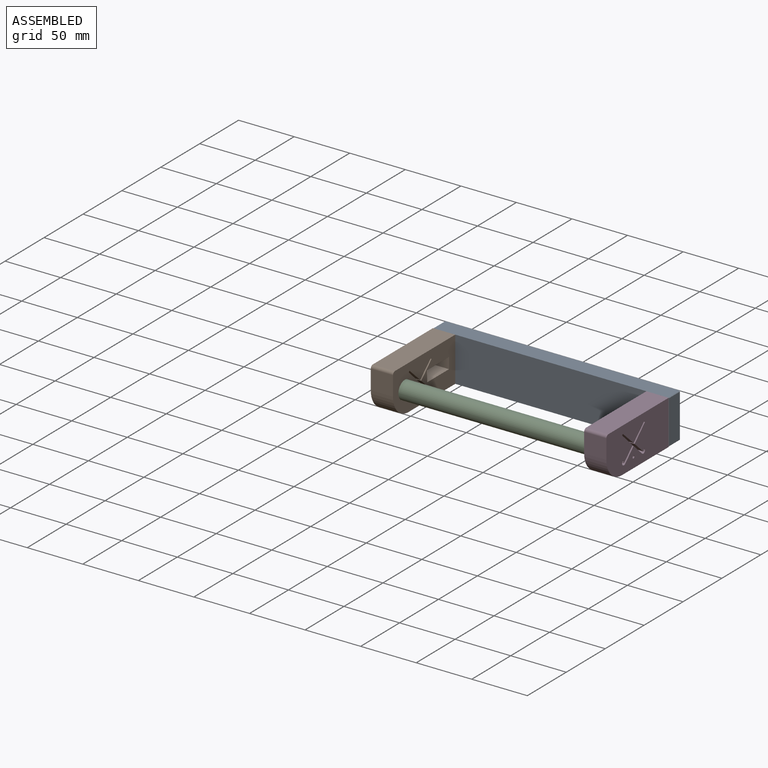
[diagram: assembled view]
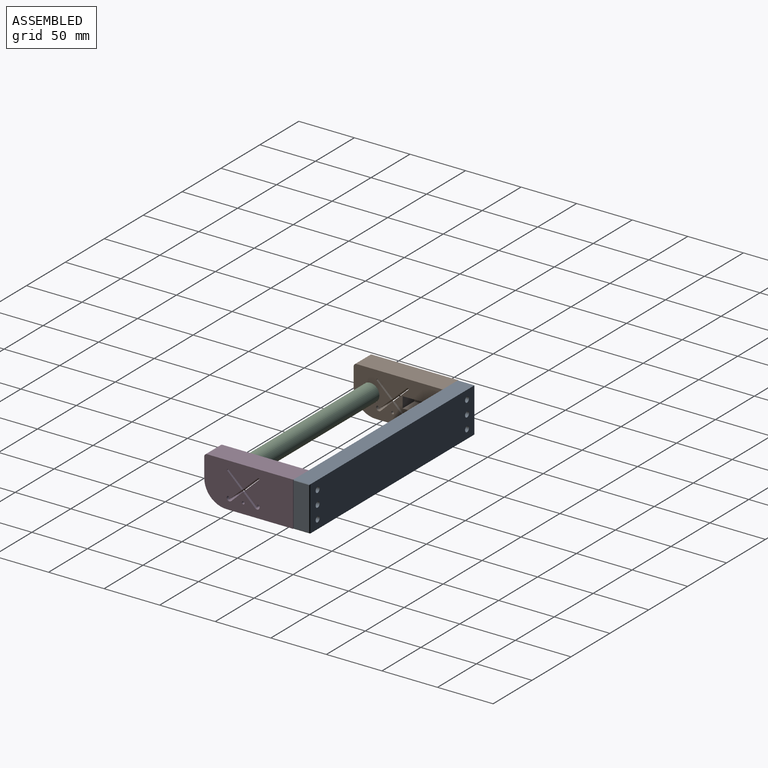
[diagram: assembled view, second angle]
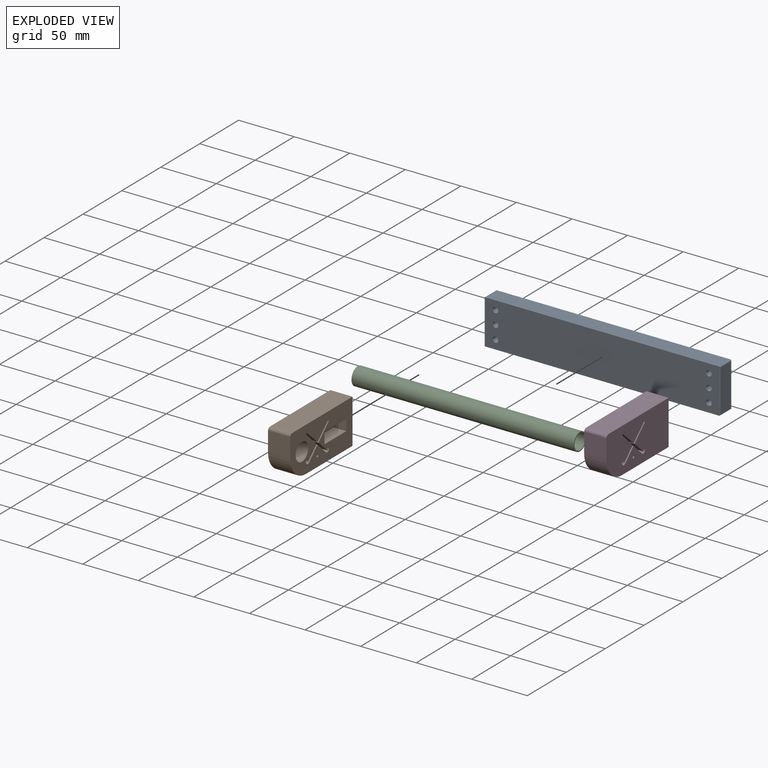
[diagram: exploded view]
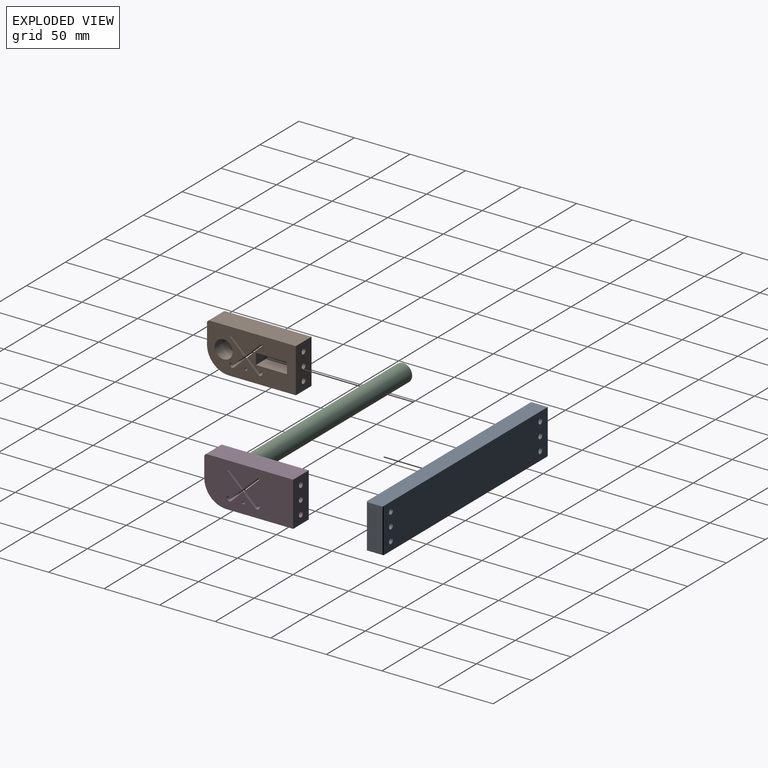
[diagram: exploded view, second angle]
ASSEMBLY  parts=4 mates=7
PART A: 20 faces, bbox 212x15x40 mm
  f0: plane 211x40mm, normal (0,-1,0), area 8322.2mm2, adj f2,f4,f5,f6,f8,f9,f10,f11
  f1: plane 211x40mm, normal (0,1,0), area 8322.2mm2, adj f2,f4,f5,f6,f8,f9,f10,f11
  f2: plane 211x15mm, normal (0,0,1), area 3165mm2, adj f0,f1,f13,f17
  f3: plane 39x14mm, normal (-1,0,0), area 546mm2, adj f12,f13,f14,f15
  f4: plane 211x15mm, normal (0,0,-1), area 3165mm2, adj f0,f1,f14,f18
  f5: cylinder r=2.5mm len=15mm, axis (0,1,0), area 235.6mm2, adj f0,f1
  f6: cylinder r=2.5mm len=15mm, axis (0,1,0), area 235.6mm2, adj f0,f1
  f7: plane 39x14mm, normal (1,0,0), area 546mm2, adj f16,f17,f18,f19
  f8: cylinder r=2.5mm len=15mm, axis (0,-1,0), area 235.6mm2, adj f0,f1
  f9: cylinder r=2.5mm len=15mm, axis (0,-1,0), area 235.6mm2, adj f0,f1
  f10: cylinder r=2.5mm len=15mm, axis (0,-1,0), area 235.6mm2, adj f0,f1
  f11: cylinder r=2.5mm len=15mm, axis (0,-1,0), area 235.6mm2, adj f0,f1
  f12: plane 40x0.5mm, normal (-0.71,-0.71,0), area 27.9mm2, adj f0,f3,f13,f14
  f13: plane 15x0.5mm, normal (-0.71,0,0.71), area 10.3mm2, adj f2,f3,f12,f15
  f14: plane 15x0.5mm, normal (-0.71,0,-0.71), area 10.3mm2, adj f3,f4,f12,f15
  f15: plane 40x0.5mm, normal (-0.71,0.71,0), area 27.9mm2, adj f1,f3,f13,f14
  f16: plane 40x0.5mm, normal (0.71,-0.71,0), area 27.9mm2, adj f0,f7,f17,f18
  f17: plane 15x0.5mm, normal (0.71,0,0.71), area 10.3mm2, adj f2,f7,f16,f19
  f18: plane 15x0.5mm, normal (0.71,0,-0.71), area 10.3mm2, adj f4,f7,f16,f19
  f19: plane 40x0.5mm, normal (0.71,0.71,0), area 27.9mm2, adj f1,f7,f17,f18
PART B: 39 faces, bbox 20x80x40 mm
  f0: plane 80x40mm, normal (1,0,0), area 2489.5mm2, adj f3,f4,f5,f6,f7,f9,f10,f11
  f1: plane 80x40mm, normal (-1,0,0), area 2975.6mm2, adj f3,f4,f5,f6,f14,f21,f22,f23
  f2: cylinder r=2.05mm len=5mm, axis (0,1,0), area 64.4mm2, adj f9,f15
  f3: plane 77.5x20mm, normal (0,0,1), area 1550mm2, adj f0,f1,f6,f38
  f4: plane 60x20mm, normal (0,0,-1), area 1200mm2, adj f0,f1,f6,f14
  f5: plane 20x17.5mm, normal (0,-1,0), area 350mm2, adj f0,f1,f14,f38
  f6: plane 40x20mm, normal (0,1,0), area 741.1mm2, adj f0,f1,f3,f4,f16,f17,f19
  f7: cylinder r=8.1mm len=16.2mm, axis (1,0,0), area 763.4mm2, adj f0,f8
  f8: plane 16.2x16.2mm, normal (1,0,0), area 206.1mm2, adj f7
  f9: plane 15x10mm, normal (0,-1,0), area 136.8mm2, adj f0,f2,f10,f12,f13
  f10: plane 28x15mm, normal (0,0,-1), area 420mm2, adj f0,f9,f11,f13
  f11: plane 15x10mm, normal (0,1,0), area 150mm2, adj f0,f10,f12,f13
  f12: plane 28x15mm, normal (0,0,1), area 420mm2, adj f0,f9,f11,f13
  f13: plane 28x10mm, normal (1,0,0), area 280mm2, adj f9,f10,f11,f12
  f14: cylinder r=20mm len=20mm, axis (-1,0,0), area 628.3mm2, adj f0,f1,f4,f5
  f15: plane 5x5mm, normal (0,1,0), area 6.4mm2, adj f2,f16
  f16: cylinder r=2.5mm len=5mm, axis (0,1,0), area 47.1mm2, adj f6,f15
  f17: cylinder r=2.5mm len=10mm, axis (0,1,0), area 157.1mm2, adj f6,f18
  f18: plane 5x5mm, normal (0,1,0), area 19.6mm2, adj f17
  f19: cylinder r=2.5mm len=10mm, axis (0,1,0), area 157.1mm2, adj f6,f20
  f20: plane 5x5mm, normal (0,1,0), area 19.6mm2, adj f19
  f21: cylinder r=0.53mm len=20mm, axis (1,0,0), area 30.6mm2, adj f0,f1,f22,f36
  f22: cylinder r=0.94mm len=20mm, axis (1,0,0), area 58.8mm2, adj f0,f1,f21,f23
  f23: cylinder r=2.4mm len=20mm, axis (1,0,0), area 139.4mm2, adj f0,f1,f22,f24
  f24: plane 20x10.74mm, normal (0,-0.69,0.72), area 298mm2, adj f0,f1,f23,f25
  f25: plane 20x10.74mm, normal (0,0.69,0.72), area 298mm2, adj f0,f1,f24,f26
  f26: cylinder r=2.4mm len=20mm, axis (1,0,0), area 139.4mm2, adj f0,f1,f25,f27
  f27: cylinder r=0.94mm len=20mm, axis (1,0,0), area 58.8mm2, adj f0,f1,f26,f28
  f28: cylinder r=0.53mm len=20mm, axis (1,0,0), area 30.6mm2, adj f0,f1,f27,f29
  f29: plane 20x10.79mm, normal (0,-0.68,-0.73), area 295.6mm2, adj f0,f1,f28,f30
  f30: plane 20x13.2mm, normal (0,-0.69,0.72), area 365.7mm2, adj f0,f1,f29,f31
  f31: cylinder r=0.76mm len=20mm, axis (1,0,0), area 36.5mm2, adj f0,f1,f30,f32
  f32: plane 20x13.45mm, normal (0,0.68,-0.73), area 366.8mm2, adj f0,f1,f31,f33
  f33: plane 20x13.45mm, normal (0,-0.68,-0.73), area 366.8mm2, adj f0,f1,f32,f34
  f34: cylinder r=0.76mm len=20mm, axis (1,0,0), area 36.5mm2, adj f0,f1,f33,f35
  f35: plane 20x13.2mm, normal (0,0.69,0.72), area 365.7mm2, adj f0,f1,f34,f36
  f36: plane 20x10.79mm, normal (0,0.68,-0.73), area 295.6mm2, adj f0,f1,f21,f35
  f37: cylinder r=1.22mm len=20mm, axis (1,0,0), area 153.5mm2, adj f0,f1
  f38: cylinder r=2.5mm len=20mm, axis (1,0,0), area 78.5mm2, adj f0,f1,f3,f5
PART C: 4 faces, bbox 200x16x16 mm
  f0: cylinder r=7mm len=200mm, axis (-1,0,0), area 8796.5mm2, adj f2,f3
  f1: cylinder r=8mm len=200mm, axis (-1,0,0), area 10053.1mm2, adj f2,f3
  f2: plane 16x16mm, normal (1,0,0), area 47.1mm2, adj f0,f1
  f3: plane 16x16mm, normal (-1,0,0), area 47.1mm2, adj f0,f1
PART D: 39 faces, bbox 20x80x40 mm
  f0: plane 80x40mm, normal (-1,0,0), area 2489.5mm2, adj f3,f4,f5,f6,f7,f9,f10,f11
  f1: plane 80x40mm, normal (1,0,0), area 2975.6mm2, adj f3,f4,f5,f6,f14,f21,f22,f23
  f2: cylinder r=2.05mm len=5mm, axis (0,1,0), area 64.4mm2, adj f9,f15
  f3: plane 77.5x20mm, normal (0,0,1), area 1550mm2, adj f0,f1,f6,f38
  f4: plane 60x20mm, normal (0,0,-1), area 1200mm2, adj f0,f1,f6,f14
  f5: plane 20x17.5mm, normal (0,-1,0), area 350mm2, adj f0,f1,f14,f38
  f6: plane 40x20mm, normal (0,1,0), area 741.1mm2, adj f0,f1,f3,f4,f16,f17,f19
  f7: cylinder r=8.1mm len=16.2mm, axis (-1,0,0), area 763.4mm2, adj f0,f8
  f8: plane 16.2x16.2mm, normal (-1,0,0), area 206.1mm2, adj f7
  f9: plane 15x10mm, normal (0,-1,0), area 136.8mm2, adj f0,f2,f10,f12,f13
  f10: plane 28x15mm, normal (0,0,-1), area 420mm2, adj f0,f9,f11,f13
  f11: plane 15x10mm, normal (0,1,0), area 150mm2, adj f0,f10,f12,f13
  f12: plane 28x15mm, normal (0,0,1), area 420mm2, adj f0,f9,f11,f13
  f13: plane 28x10mm, normal (-1,0,0), area 280mm2, adj f9,f10,f11,f12
  f14: cylinder r=20mm len=20mm, axis (1,0,0), area 628.3mm2, adj f0,f1,f4,f5
  f15: plane 5x5mm, normal (0,1,0), area 6.4mm2, adj f2,f16
  f16: cylinder r=2.5mm len=5mm, axis (0,1,0), area 47.1mm2, adj f6,f15
  f17: cylinder r=2.5mm len=10mm, axis (0,1,0), area 157.1mm2, adj f6,f18
  f18: plane 5x5mm, normal (0,1,0), area 19.6mm2, adj f17
  f19: cylinder r=2.5mm len=10mm, axis (0,1,0), area 157.1mm2, adj f6,f20
  f20: plane 5x5mm, normal (0,1,0), area 19.6mm2, adj f19
  f21: cylinder r=0.53mm len=20mm, axis (-1,0,0), area 30.6mm2, adj f0,f1,f22,f36
  f22: cylinder r=0.94mm len=20mm, axis (-1,0,0), area 58.8mm2, adj f0,f1,f21,f23
  f23: cylinder r=2.4mm len=20mm, axis (-1,0,0), area 139.4mm2, adj f0,f1,f22,f24
  f24: plane 20x10.74mm, normal (0,-0.69,0.72), area 298mm2, adj f0,f1,f23,f25
  f25: plane 20x10.74mm, normal (0,0.69,0.72), area 298mm2, adj f0,f1,f24,f26
  f26: cylinder r=2.4mm len=20mm, axis (-1,0,0), area 139.4mm2, adj f0,f1,f25,f27
  f27: cylinder r=0.94mm len=20mm, axis (-1,0,0), area 58.8mm2, adj f0,f1,f26,f28
  f28: cylinder r=0.53mm len=20mm, axis (-1,0,0), area 30.6mm2, adj f0,f1,f27,f29
  f29: plane 20x10.79mm, normal (0,-0.68,-0.73), area 295.6mm2, adj f0,f1,f28,f30
  f30: plane 20x13.2mm, normal (0,-0.69,0.72), area 365.7mm2, adj f0,f1,f29,f31
  f31: cylinder r=0.76mm len=20mm, axis (-1,0,0), area 36.5mm2, adj f0,f1,f30,f32
  f32: plane 20x13.45mm, normal (0,0.68,-0.73), area 366.8mm2, adj f0,f1,f31,f33
  f33: plane 20x13.45mm, normal (0,-0.68,-0.73), area 366.8mm2, adj f0,f1,f32,f34
  f34: cylinder r=0.76mm len=20mm, axis (-1,0,0), area 36.5mm2, adj f0,f1,f33,f35
  f35: plane 20x13.2mm, normal (0,0.69,0.72), area 365.7mm2, adj f0,f1,f34,f36
  f36: plane 20x10.79mm, normal (0,0.68,-0.73), area 295.6mm2, adj f0,f1,f21,f35
  f37: cylinder r=1.22mm len=20mm, axis (-1,0,0), area 153.5mm2, adj f0,f1
  f38: cylinder r=2.5mm len=20mm, axis (-1,0,0), area 78.5mm2, adj f0,f1,f3,f5
PLACE A t=(134.93,73.76,-51.18)mm
PLACE B t=(134.93,73.76,-51.18)mm
PLACE C t=(134.93,73.76,-51.18)mm
PLACE D t=(134.93,73.76,-51.18)mm
MATE cylindrical D.f17 <-> A.f10  axis (0,1,0) through (230.93,53.76,-63.18)mm
MATE planar A.f2 <-> D.f3  axis (0,0,1) through (134.93,66.26,-31.18)mm
MATE planar C.f1 <-> B.f7  axis (-1,0,0) through (34.93,-6.24,-51.18)mm
MATE cylindrical A.f8 <-> B.f19  axis (0,-1,0) through (38.93,58.76,-39.18)mm
MATE planar A.f0 <-> D.f16  axis (0,-1,0) through (134.93,58.76,-51.18)mm
MATE planar B.f16 <-> A.f0  axis (0,1,0) through (38.93,58.76,-51.18)mm
MATE cylindrical C.f1 <-> B.f7  axis (-1,0,0) through (134.93,-6.24,-51.18)mm
